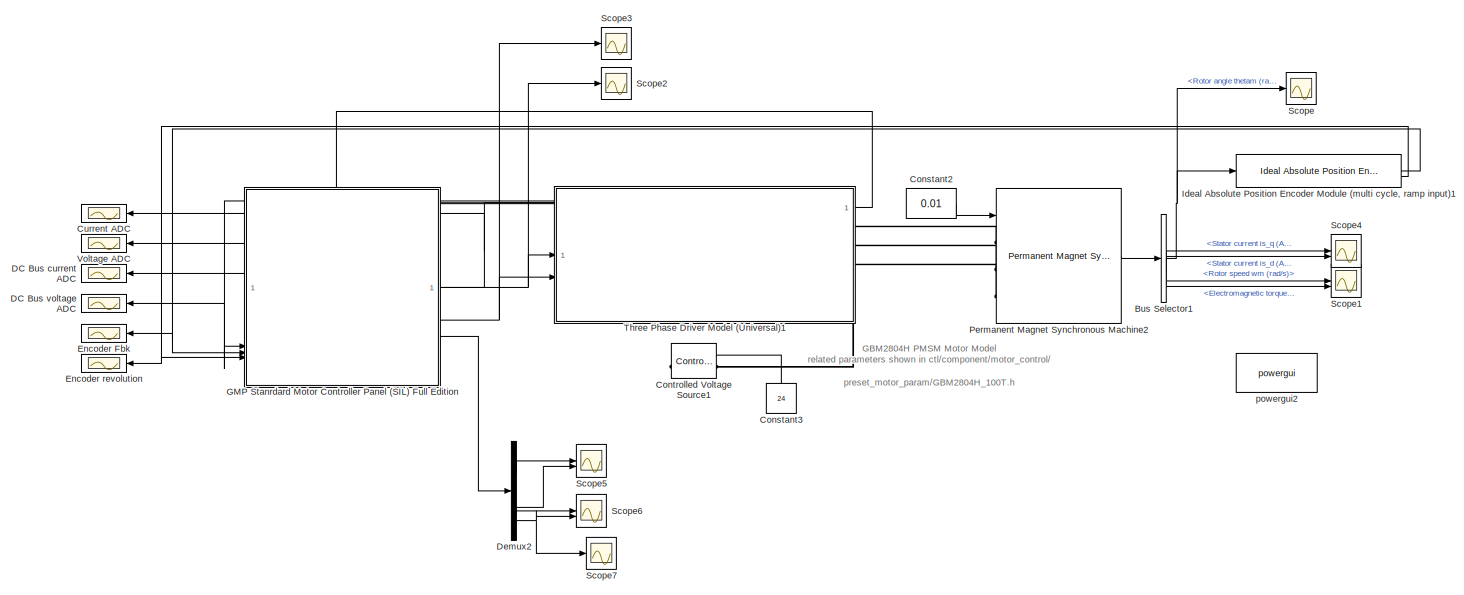
[diagram: root canvas - part 1/2, full width, top band]
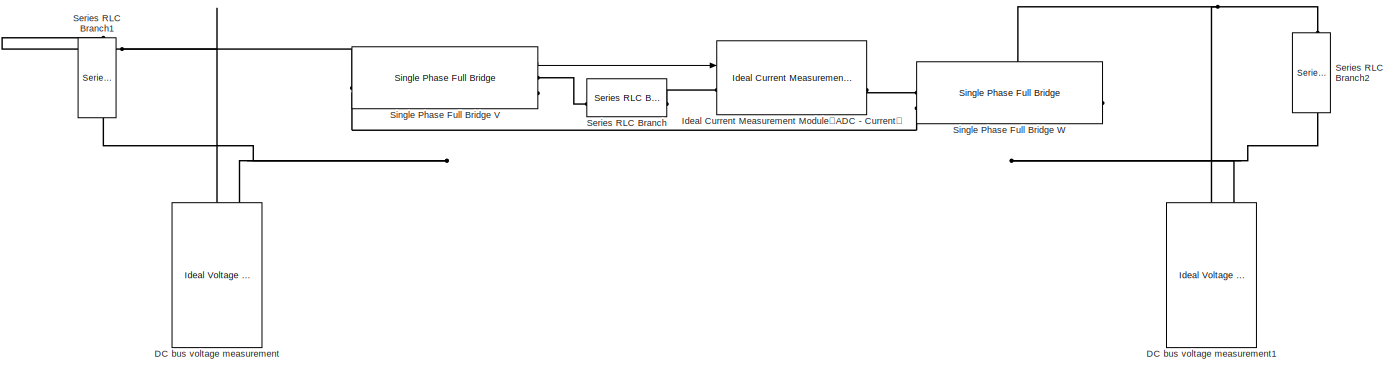
[diagram: root canvas - part 2/2, full width, bottom band]
MODEL slx_8301f8941a6f
KIND model
CONFIG AbsTol = auto
CONFIG EnableMultiTasking = off
CONFIG FixedStep = auto
CONFIG MaxStep = auto
CONFIG MinStep = auto
CONFIG RelTol = 1e-3
CONFIG SampleTimeConstraint = Unconstrained
CONFIG SolverName = VariableStepAuto
CONFIG StartTime = 0.0
CONFIG StopTime = 2
BLOCK [BusSelector] Bus Selector1
  OutputSignals = Rotor angle thetam (rad),Stator current is_q (A),Stator current is_d (A),Rotor speed wm (rad/s),Electromagnetic torque Te (N*m)
BLOCK [Constant] Constant2
  Value = 0.01
BLOCK [Constant] Constant3
  NameLocation = right
  Value = 24
BLOCK [Reference] Controlled Voltage Source1  REF=spsControlledVoltageSourceLib/Controlled Voltage Source
  LibrarySourceBlock = sps_lib/Sources/Controlled Voltage Source
  NameLocation = right
  SourceBlock = spsControlledVoltageSourceLib/Controlled Voltage Source
  SourceType = Controlled Voltage Source
BLOCK [Scope] Current ADC
  Floating = off
  NumInputPorts = 1
  ScopeSpecificationString = Simulink.scopes.TimeScopeBlockCfg('CurrentConfiguration', extmgr.ConfigurationSet(extmgr.Configuration('Core','General UI',true),extmgr.Configuration('Core','Source UI',true),extmgr.Configuration('Sources','WiredSimulink',true,'DataLoggingVariableName','ScopeData4'),extmgr.Configuration('Visuals','Time Domain',true,'SerializedDisplays',{struct('MinYLimReal','1963.00000','MaxYLimReal','2133.00000',...<+1699ch>
BLOCK [Scope] DC Bus current ADC
  Floating = off
  NumInputPorts = 1
  ScopeSpecificationString = Simulink.scopes.TimeScopeBlockCfg('CurrentConfiguration', extmgr.ConfigurationSet(extmgr.Configuration('Core','General UI',true),extmgr.Configuration('Core','Source UI',true),extmgr.Configuration('Sources','WiredSimulink',true,'DataLoggingVariableName','ScopeData6'),extmgr.Configuration('Visuals','Time Domain',true),extmgr.Configuration('Tools','Plot Navigation',true),extmgr.Configuration('Tools',...<+40ch>
BLOCK [Scope] DC Bus voltage ADC
  Floating = off
  NumInputPorts = 1
  ScopeSpecificationString = Simulink.scopes.TimeScopeBlockCfg('CurrentConfiguration', extmgr.ConfigurationSet(extmgr.Configuration('Core','General UI',true),extmgr.Configuration('Core','Source UI',true),extmgr.Configuration('Sources','WiredSimulink',true,'DataLoggingVariableName','ScopeData7'),extmgr.Configuration('Visuals','Time Domain',true),extmgr.Configuration('Tools','Plot Navigation',true),extmgr.Configuration('Tools',...<+40ch>
BLOCK [Reference] DC bus voltage measurement  REF=peripheral_utilities/Ideal Voltage Measurement Module(ADC - Voltage)
  Commented = on
  NameLocation = left
  SourceBlock = peripheral_utilities/Ideal Voltage Measurement Module(ADC - Voltage)
  SourceProductName = Virtual Peripheral Utilities
BLOCK [Reference] DC bus voltage measurement1  REF=peripheral_utilities/Ideal Voltage Measurement Module(ADC - Voltage)
  Commented = on
  NameLocation = left
  SourceBlock = peripheral_utilities/Ideal Voltage Measurement Module(ADC - Voltage)
  SourceProductName = Virtual Peripheral Utilities
BLOCK [Demux] Demux2
BLOCK [Scope] Encoder Fbk
  Floating = off
  NumInputPorts = 1
  ScopeSpecificationString = Simulink.scopes.TimeScopeBlockCfg('CurrentConfiguration', extmgr.ConfigurationSet(extmgr.Configuration('Core','General UI',true),extmgr.Configuration('Core','Source UI',true),extmgr.Configuration('Sources','WiredSimulink',true,'DataLoggingVariableName','ScopeData8'),extmgr.Configuration('Visuals','Time Domain',true,'SerializedDisplays',{struct('MinYLimReal','-2047.875','MaxYLimReal','18430.875','Y...<+1600ch>
BLOCK [Scope] Encoder revolution
  Floating = off
  NumInputPorts = 1
  ScopeSpecificationString = Simulink.scopes.TimeScopeBlockCfg('CurrentConfiguration', extmgr.ConfigurationSet(extmgr.Configuration('Core','General UI',true),extmgr.Configuration('Core','Source UI',true),extmgr.Configuration('Sources','WiredSimulink',true,'DataLoggingVariableName','ScopeData9'),extmgr.Configuration('Visuals','Time Domain',true,'SerializedDisplays',{struct('MinYLimReal','-10','MaxYLimReal','10','YLabelReal',''...<+849ch>
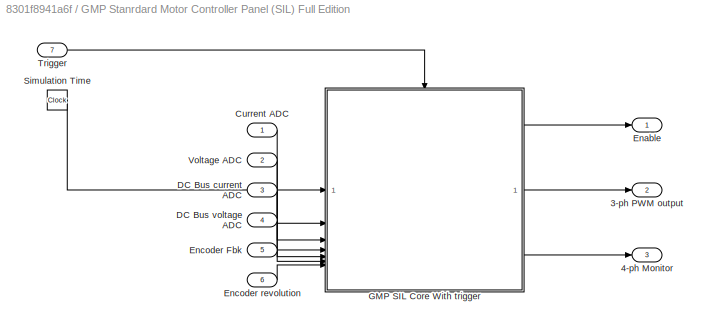
BLOCK [SubSystem] GMP Stanrdard Motor Controller Panel (SIL) Full Edition
  PortSchema = {"entries":[{"content":{"sides":[{"content":{"connectorIds":["In1","In2","In3","In4","In5","In6"]},"type":"ConnectorPlacement.EquallySpacedRectSide","uuid":"45c67bc9-9540-469a-a4ac-1e12eb9acca3"},{"content":{"connectorIds":["Out1","Out2","Out3"],"side":"RIGHT"},"type":"ConnectorPlacement.EquallySpacedRectSide","uuid":"a17116b4-0460-48ab-8ada-a785da6c5e29"},{"content":{"connectorIds":["In7"],"side"...<+289ch>
BLOCK [Outport] GMP Stanrdard Motor Controller Panel (SIL) Full Edition/3-ph PWM output
  Port = 2
BLOCK [Outport] GMP Stanrdard Motor Controller Panel (SIL) Full Edition/4-ph Monitor
  Port = 3
BLOCK [Inport] GMP Stanrdard Motor Controller Panel (SIL) Full Edition/Current ADC
BLOCK [Inport] GMP Stanrdard Motor Controller Panel (SIL) Full Edition/DC Bus current ADC
  Port = 3
BLOCK [Inport] GMP Stanrdard Motor Controller Panel (SIL) Full Edition/DC Bus voltage ADC
  Port = 4
BLOCK [Outport] GMP Stanrdard Motor Controller Panel (SIL) Full Edition/Enable
BLOCK [Inport] GMP Stanrdard Motor Controller Panel (SIL) Full Edition/Encoder Fbk
  Port = 5
BLOCK [Inport] GMP Stanrdard Motor Controller Panel (SIL) Full Edition/Encoder revolution
  Port = 6
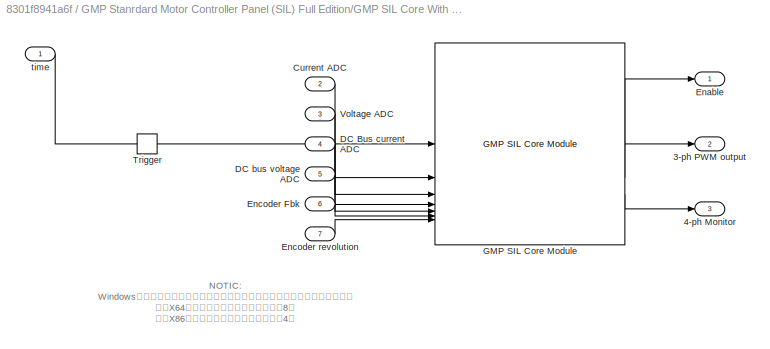
BLOCK [SubSystem] GMP Stanrdard Motor Controller Panel (SIL) Full Edition/GMP SIL Core With trigger
BLOCK [Outport] GMP Stanrdard Motor Controller Panel (SIL) Full Edition/GMP SIL Core With trigger/3-ph PWM output
  Port = 2
BLOCK [Outport] GMP Stanrdard Motor Controller Panel (SIL) Full Edition/GMP SIL Core With trigger/4-ph Monitor
  Port = 3
BLOCK [Inport] GMP Stanrdard Motor Controller Panel (SIL) Full Edition/GMP SIL Core With trigger/Current ADC
  Port = 2
BLOCK [Inport] GMP Stanrdard Motor Controller Panel (SIL) Full Edition/GMP SIL Core With trigger/DC Bus current ADC
  Port = 4
BLOCK [Inport] GMP Stanrdard Motor Controller Panel (SIL) Full Edition/GMP SIL Core With trigger/DC bus voltage ADC
  Port = 5
BLOCK [Outport] GMP Stanrdard Motor Controller Panel (SIL) Full Edition/GMP SIL Core With trigger/Enable
BLOCK [Inport] GMP Stanrdard Motor Controller Panel (SIL) Full Edition/GMP SIL Core With trigger/Encoder Fbk
  Port = 6
BLOCK [Inport] GMP Stanrdard Motor Controller Panel (SIL) Full Edition/GMP SIL Core With trigger/Encoder revolution
  Port = 7
BLOCK [Reference] GMP Stanrdard Motor Controller Panel (SIL) Full Edition/GMP SIL Core With trigger/GMP SIL Core Module  REF=gmp_sil_core_pack/GMP SIL Core Module
  SourceBlock = gmp_sil_core_pack/GMP SIL Core Module
  SourceProductName = GMP SIL Core Utilities
  SourceType = GMP CTL SIL Core
BLOCK [TriggerPort] GMP Stanrdard Motor Controller Panel (SIL) Full Edition/GMP SIL Core With trigger/Trigger
  PortDimensions = 1
  StatesWhenEnabling = held
  VariantControl = (inherit)
BLOCK [Inport] GMP Stanrdard Motor Controller Panel (SIL) Full Edition/GMP SIL Core With trigger/Voltage ADC
  Port = 3
BLOCK [Inport] GMP Stanrdard Motor Controller Panel (SIL) Full Edition/GMP SIL Core With trigger/time
BLOCK [Clock] GMP Stanrdard Motor Controller Panel (SIL) Full Edition/Simulation Time
BLOCK [Inport] GMP Stanrdard Motor Controller Panel (SIL) Full Edition/Trigger
  Port = 7
BLOCK [Inport] GMP Stanrdard Motor Controller Panel (SIL) Full Edition/Voltage ADC
  Port = 2
BLOCK [Reference] Ideal Absolute Position Encoder Module (multi cycle, ramp input)1  REF=peripheral_utilities/Ideal Absolute Position Encoder Module (multi cycle, ramp input)
  SourceBlock = peripheral_utilities/Ideal Absolute Position Encoder Module (multi cycle, ramp input)
  SourceProductName = Virtual Peripheral Utilities
BLOCK [Reference] Ideal Current Measurement Module（ADC - Current）  REF=peripheral_utilities/Ideal Current Measurement Module（ADC - Current）
  Commented = on
  SourceBlock = peripheral_utilities/Ideal Current Measurement Module（ADC - Current）
  SourceProductName = Virtual Peripheral Utilities
BLOCK [Reference] Permanent Magnet Synchronous Machine2  REF=spsPermanentMagnetSynchronousMachineLib/Permanent Magnet
Synchronous Machine
  LibrarySourceBlock = sps_lib/Electrical Machines/Permanent Magnet\nSynchronous Machine
  SourceBlock = spsPermanentMagnetSynchronousMachineLib/Permanent Magnet\nSynchronous Machine
  SourceType = Permanent Magnet Synchronous Machine
BLOCK [Scope] Scope
  Floating = off
  NumInputPorts = 1
  ScopeSpecificationString = Simulink.scopes.TimeScopeBlockCfg('CurrentConfiguration', extmgr.ConfigurationSet(extmgr.Configuration('Core','General UI',true),extmgr.Configuration('Core','Source UI',true),extmgr.Configuration('Sources','WiredSimulink',true,'DataLoggingVariableName','ScopeData1'),extmgr.Configuration('Visuals','Time Domain',true,'SerializedDisplays',{struct('MinYLimReal','-8.4093','MaxYLimReal','75.68219','YLab...<+1476ch>
BLOCK [Scope] Scope1
  Floating = off
  NumInputPorts = 2
  ScopeSpecificationString = Simulink.scopes.TimeScopeBlockCfg('CurrentConfiguration', extmgr.ConfigurationSet(extmgr.Configuration('Core','General UI',true),extmgr.Configuration('Core','Source UI',true),extmgr.Configuration('Sources','WiredSimulink',true,'DataLoggingVariableName','ScopeData2'),extmgr.Configuration('Visuals','Time Domain',true,'SerializedDisplays',{struct('MinYLimReal','-209.94214','MaxYLimReal','329.88362','...<+1568ch>
BLOCK [Scope] Scope2
  Floating = off
  NumInputPorts = 1
  ScopeSpecificationString = Simulink.scopes.TimeScopeBlockCfg('CurrentConfiguration', extmgr.ConfigurationSet(extmgr.Configuration('Core','General UI',true),extmgr.Configuration('Core','Source UI',true),extmgr.Configuration('Sources','WiredSimulink',true,'DataLoggingVariableName','ScopeData3'),extmgr.Configuration('Visuals','Time Domain',true,'SerializedDisplays',{struct('MinYLimReal','-0.125','MaxYLimReal','1.125','YLabelRe...<+1493ch>
BLOCK [Scope] Scope3
  Floating = off
  NumInputPorts = 1
  ScopeSpecificationString = Simulink.scopes.TimeScopeBlockCfg('CurrentConfiguration', extmgr.ConfigurationSet(extmgr.Configuration('Core','General UI',true),extmgr.Configuration('Core','Source UI',true),extmgr.Configuration('Sources','WiredSimulink',true,'DataLoggingVariableName','ScopeData4'),extmgr.Configuration('Visuals','Time Domain',true,'SerializedDisplays',{struct('MinYLimReal','-650.5','MaxYLimReal','5854.5','YLabelR...<+1726ch>
BLOCK [Scope] Scope4
  Floating = off
  NumInputPorts = 2
  ScopeSpecificationString = Simulink.scopes.TimeScopeBlockCfg('CurrentConfiguration', extmgr.ConfigurationSet(extmgr.Configuration('Core','General UI',true),extmgr.Configuration('Core','Source UI',true),extmgr.Configuration('Sources','WiredSimulink',true,'DataLoggingVariableName','ScopeData3'),extmgr.Configuration('Visuals','Time Domain',true,'SerializedDisplays',{struct('MinYLimReal','-0.21116','MaxYLimReal','0.72788','YLab...<+1601ch>
BLOCK [Scope] Scope5
  Floating = off
  NumInputPorts = 2
  ScopeSpecificationString = Simulink.scopes.TimeScopeBlockCfg('CurrentConfiguration', extmgr.ConfigurationSet(extmgr.Configuration('Core','General UI',true),extmgr.Configuration('Core','Source UI',true),extmgr.Configuration('Sources','WiredSimulink',true,'DataLoggingVariableName','ScopeData10'),extmgr.Configuration('Visuals','Time Domain',true,'SerializedDisplays',{struct('MinYLimReal','-0.75003','MaxYLimReal','0.75031','YLa...<+1681ch>
BLOCK [Scope] Scope6
  Floating = off
  NumInputPorts = 2
  ScopeSpecificationString = Simulink.scopes.TimeScopeBlockCfg('CurrentConfiguration', extmgr.ConfigurationSet(extmgr.Configuration('Core','General UI',true),extmgr.Configuration('Core','Source UI',true),extmgr.Configuration('Sources','WiredSimulink',true,'DataLoggingVariableName','ScopeData11'),extmgr.Configuration('Visuals','Time Domain',true,'SerializedDisplays',{struct('MinYLimReal','-1.61041','MaxYLimReal','4.31319','YLa...<+1683ch>
BLOCK [Scope] Scope7
  Floating = off
  NumInputPorts = 1
  ScopeSpecificationString = Simulink.scopes.TimeScopeBlockCfg('CurrentConfiguration', extmgr.ConfigurationSet(extmgr.Configuration('Core','General UI',true),extmgr.Configuration('Core','Source UI',true),extmgr.Configuration('Sources','WiredSimulink',true,'DataLoggingVariableName','ScopeData5'),extmgr.Configuration('Visuals','Time Domain',true,'SerializedDisplays',{struct('MinYLimReal','-1.61041','MaxYLimReal','4.31319','YLab...<+1554ch>
BLOCK [Reference] Series RLC Branch  REF=spsSeriesRLCBranchLib/Series RLC Branch
  Commented = on
  LibrarySourceBlock = sps_lib/Passives/Series RLC Branch
  SourceBlock = spsSeriesRLCBranchLib/Series RLC Branch
  SourceType = Series RLC Branch
BLOCK [Reference] Series RLC Branch1  REF=spsSeriesRLCBranchLib/Series RLC Branch
  Commented = on
  LibrarySourceBlock = sps_lib/Passives/Series RLC Branch
  NameLocation = left
  SourceBlock = spsSeriesRLCBranchLib/Series RLC Branch
  SourceType = Series RLC Branch
BLOCK [Reference] Series RLC Branch2  REF=spsSeriesRLCBranchLib/Series RLC Branch
  Commented = on
  LibrarySourceBlock = sps_lib/Passives/Series RLC Branch
  NameLocation = left
  SourceBlock = spsSeriesRLCBranchLib/Series RLC Branch
  SourceType = Series RLC Branch
BLOCK [Reference] Single Phase Full Bridge V  REF=peripheral_utilities/Single Phase Full Bridge
  Commented = on
  SourceBlock = peripheral_utilities/Single Phase Full Bridge
  SourceProductName = Virtual Peripheral Utilities
BLOCK [Reference] Single Phase Full Bridge W  REF=peripheral_utilities/Single Phase Full Bridge
  Commented = on
  SourceBlock = peripheral_utilities/Single Phase Full Bridge
  SourceProductName = Virtual Peripheral Utilities
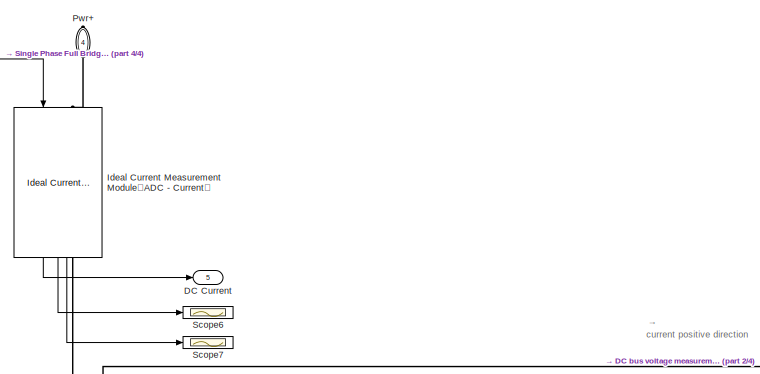
[diagram: Three Phase Driver Model (Universal)1 - part 1/4, top center region]
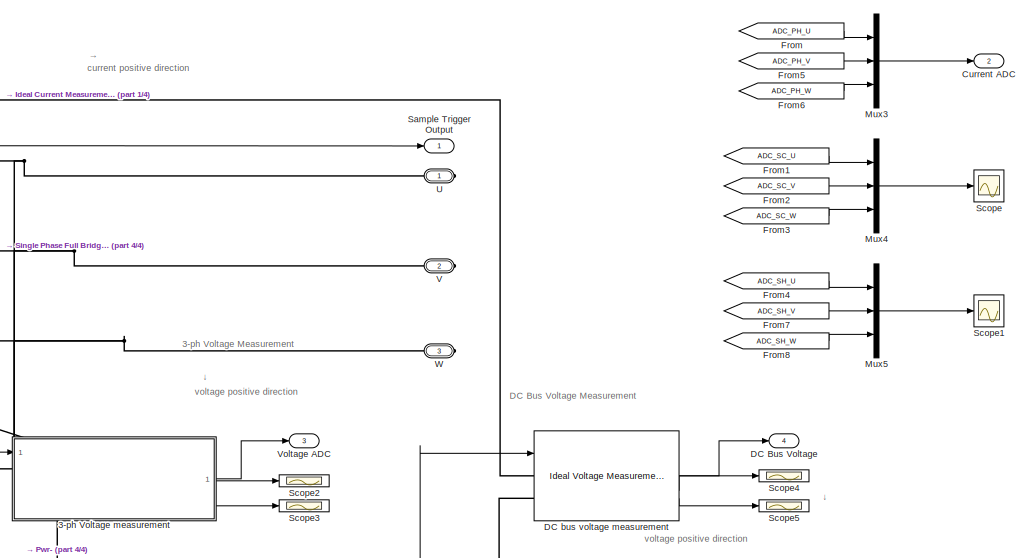
[diagram: Three Phase Driver Model (Universal)1 - part 2/4, middle right region]
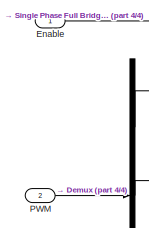
[diagram: Three Phase Driver Model (Universal)1 - part 3/4, middle left region]
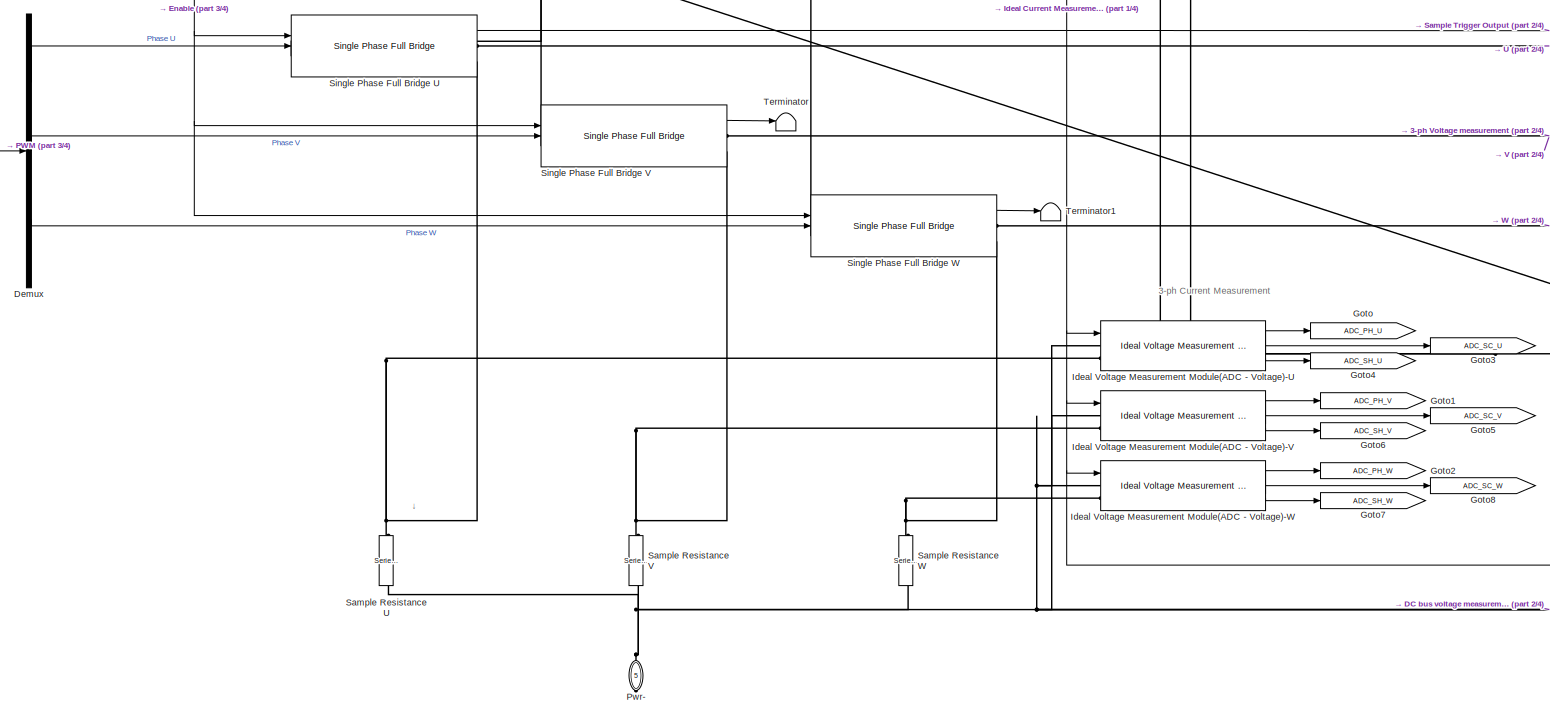
[diagram: Three Phase Driver Model (Universal)1 - part 4/4, bottom left region]
BLOCK [SubSystem] Three Phase Driver Model (Universal)1
  AncestorBlock = peripheral_utilities/Three Phase Driver Model (Universal)
  PortSchema = {"entries":[{"content":{"sides":[{"content":{"connectorIds":["In1","In2"]},"type":"ConnectorPlacement.EquallySpacedRectSide","uuid":"3f4c86ad-0582-4f47-8583-a8af9a7f9adc"},{"content":{"connectorIds":["Out1","RConn1","RConn2","RConn3"],"side":"RIGHT"},"type":"ConnectorPlacement.EquallySpacedRectSide","uuid":"ae91f325-3014-4188-9063-296f4d5623fa"},{"content":{"connectorIds":["Out2","Out3","Out4","Ou...<+461ch>
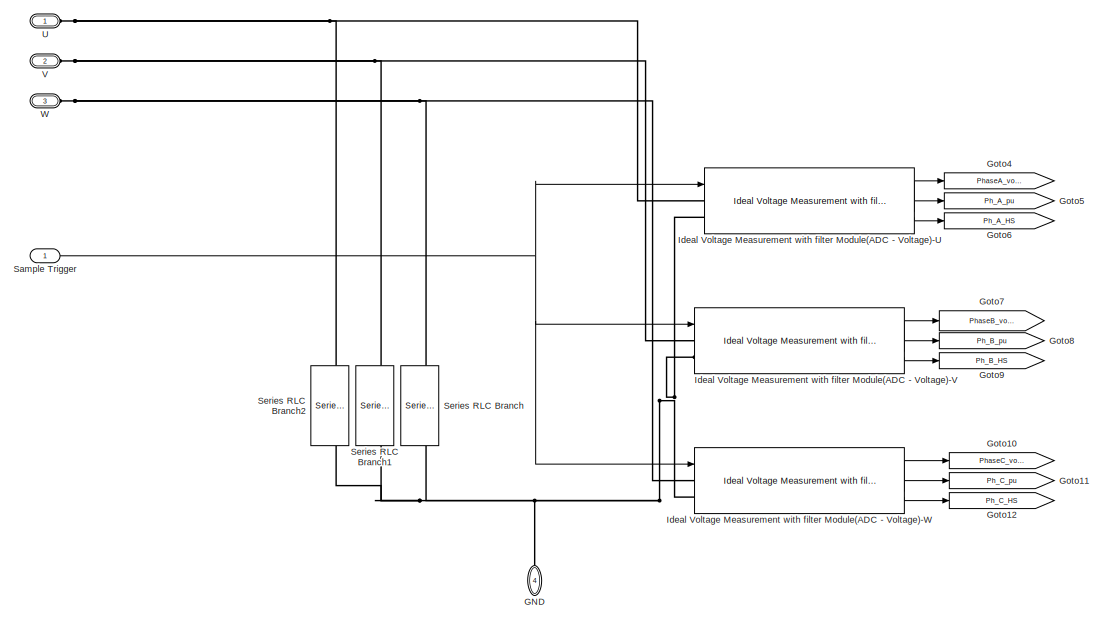
[diagram: Three Phase Driver Model (Universal)1/3-ph Voltage measurement - part 1/2, center side, full height]
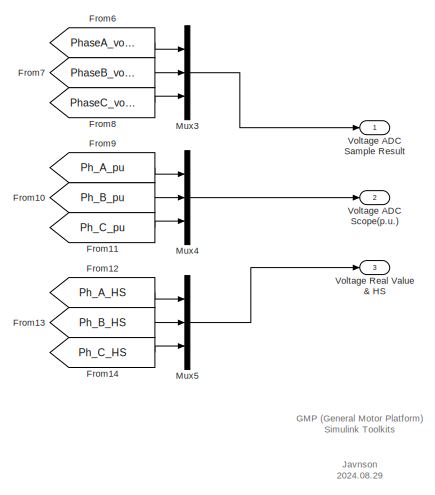
[diagram: Three Phase Driver Model (Universal)1/3-ph Voltage measurement - part 2/2, middle right region]
BLOCK [SubSystem] Three Phase Driver Model (Universal)1/3-ph Voltage measurement
  AncestorBlock = peripheral_utilities/Three Phases Voltage (ph-gnd) Measurement with Filter
  PortSchema = {"entries":[{"content":{"sides":[{"content":{"connectorIds":["In1"]},"type":"ConnectorPlacement.EquallySpacedRectSide","uuid":"ae4f4612-c092-4fa0-8a43-5c9e823110e3"},{"content":{"connectorIds":["Out1","Out2","Out3"],"side":"RIGHT"},"type":"ConnectorPlacement.EquallySpacedRectSide","uuid":"6db15ef0-d33a-4775-b4e6-14a566796673"},{"content":{"connectorIds":["LConn1","LConn2","LConn3","LConn4"],"side"...<+289ch>
BLOCK [From] Three Phase Driver Model (Universal)1/3-ph Voltage measurement/From10
  GotoTag = Ph_B_pu
BLOCK [From] Three Phase Driver Model (Universal)1/3-ph Voltage measurement/From11
  GotoTag = Ph_C_pu
BLOCK [From] Three Phase Driver Model (Universal)1/3-ph Voltage measurement/From12
  GotoTag = Ph_A_HS
BLOCK [From] Three Phase Driver Model (Universal)1/3-ph Voltage measurement/From13
  GotoTag = Ph_B_HS
BLOCK [From] Three Phase Driver Model (Universal)1/3-ph Voltage measurement/From14
  GotoTag = Ph_C_HS
BLOCK [From] Three Phase Driver Model (Universal)1/3-ph Voltage measurement/From6
  GotoTag = PhaseA_voltage
BLOCK [From] Three Phase Driver Model (Universal)1/3-ph Voltage measurement/From7
  GotoTag = PhaseB_voltage
BLOCK [From] Three Phase Driver Model (Universal)1/3-ph Voltage measurement/From8
  GotoTag = PhaseC_voltage
BLOCK [From] Three Phase Driver Model (Universal)1/3-ph Voltage measurement/From9
  GotoTag = Ph_A_pu
BLOCK [PMIOPort] Three Phase Driver Model (Universal)1/3-ph Voltage measurement/GND
  NameLocation = right
  Port = 4
  Side = Left
BLOCK [Goto] Three Phase Driver Model (Universal)1/3-ph Voltage measurement/Goto10
  GotoTag = PhaseC_voltage
BLOCK [Goto] Three Phase Driver Model (Universal)1/3-ph Voltage measurement/Goto11
  GotoTag = Ph_C_pu
BLOCK [Goto] Three Phase Driver Model (Universal)1/3-ph Voltage measurement/Goto12
  GotoTag = Ph_C_HS
BLOCK [Goto] Three Phase Driver Model (Universal)1/3-ph Voltage measurement/Goto4
  GotoTag = PhaseA_voltage
BLOCK [Goto] Three Phase Driver Model (Universal)1/3-ph Voltage measurement/Goto5
  GotoTag = Ph_A_pu
BLOCK [Goto] Three Phase Driver Model (Universal)1/3-ph Voltage measurement/Goto6
  GotoTag = Ph_A_HS
BLOCK [Goto] Three Phase Driver Model (Universal)1/3-ph Voltage measurement/Goto7
  GotoTag = PhaseB_voltage
BLOCK [Goto] Three Phase Driver Model (Universal)1/3-ph Voltage measurement/Goto8
  GotoTag = Ph_B_pu
BLOCK [Goto] Three Phase Driver Model (Universal)1/3-ph Voltage measurement/Goto9
  GotoTag = Ph_B_HS
BLOCK [Reference] Three Phase Driver Model (Universal)1/3-ph Voltage measurement/Ideal Voltage Measurement with filter Module(ADC - Voltage)-U  REF=peripheral_utilities/Ideal Voltage Measurement with filter Module(ADC - Voltage)
  SourceBlock = peripheral_utilities/Ideal Voltage Measurement with filter Module(ADC - Voltage)
  SourceProductName = Virtual Peripheral Utilities
BLOCK [Reference] Three Phase Driver Model (Universal)1/3-ph Voltage measurement/Ideal Voltage Measurement with filter Module(ADC - Voltage)-V  REF=peripheral_utilities/Ideal Voltage Measurement with filter Module(ADC - Voltage)
  SourceBlock = peripheral_utilities/Ideal Voltage Measurement with filter Module(ADC - Voltage)
  SourceProductName = Virtual Peripheral Utilities
BLOCK [Reference] Three Phase Driver Model (Universal)1/3-ph Voltage measurement/Ideal Voltage Measurement with filter Module(ADC - Voltage)-W  REF=peripheral_utilities/Ideal Voltage Measurement with filter Module(ADC - Voltage)
  SourceBlock = peripheral_utilities/Ideal Voltage Measurement with filter Module(ADC - Voltage)
  SourceProductName = Virtual Peripheral Utilities
BLOCK [Mux] Three Phase Driver Model (Universal)1/3-ph Voltage measurement/Mux3
  DisplayOption = bar
  Inputs = 3
BLOCK [Mux] Three Phase Driver Model (Universal)1/3-ph Voltage measurement/Mux4
  DisplayOption = bar
  Inputs = 3
BLOCK [Mux] Three Phase Driver Model (Universal)1/3-ph Voltage measurement/Mux5
  DisplayOption = bar
  Inputs = 3
BLOCK [Inport] Three Phase Driver Model (Universal)1/3-ph Voltage measurement/Sample Trigger
BLOCK [Reference] Three Phase Driver Model (Universal)1/3-ph Voltage measurement/Series RLC Branch  REF=spsSeriesRLCBranchLib/Series RLC Branch
  NameLocation = left
  SourceBlock = spsSeriesRLCBranchLib/Series RLC Branch
  SourceType = Series RLC Branch
BLOCK [Reference] Three Phase Driver Model (Universal)1/3-ph Voltage measurement/Series RLC Branch1  REF=spsSeriesRLCBranchLib/Series RLC Branch
  NameLocation = left
  SourceBlock = spsSeriesRLCBranchLib/Series RLC Branch
  SourceType = Series RLC Branch
BLOCK [Reference] Three Phase Driver Model (Universal)1/3-ph Voltage measurement/Series RLC Branch2  REF=spsSeriesRLCBranchLib/Series RLC Branch
  NameLocation = left
  SourceBlock = spsSeriesRLCBranchLib/Series RLC Branch
  SourceType = Series RLC Branch
BLOCK [PMIOPort] Three Phase Driver Model (Universal)1/3-ph Voltage measurement/U
  Side = Left
BLOCK [PMIOPort] Three Phase Driver Model (Universal)1/3-ph Voltage measurement/V
  Port = 2
  Side = Left
BLOCK [Outport] Three Phase Driver Model (Universal)1/3-ph Voltage measurement/Voltage ADC Sample Result
BLOCK [Outport] Three Phase Driver Model (Universal)1/3-ph Voltage measurement/Voltage ADC Scope(p.u.)
  Port = 2
BLOCK [Outport] Three Phase Driver Model (Universal)1/3-ph Voltage measurement/Voltage Real Value & HS
  Port = 3
BLOCK [PMIOPort] Three Phase Driver Model (Universal)1/3-ph Voltage measurement/W
  Port = 3
  Side = Left
BLOCK [Outport] Three Phase Driver Model (Universal)1/Current ADC
  Port = 2
BLOCK [Outport] Three Phase Driver Model (Universal)1/DC Bus Voltage
  Port = 4
BLOCK [Outport] Three Phase Driver Model (Universal)1/DC Current
  Port = 5
BLOCK [Reference] Three Phase Driver Model (Universal)1/DC bus voltage measurement  REF=peripheral_utilities/Ideal Voltage Measurement Module(ADC - Voltage)
  SourceBlock = peripheral_utilities/Ideal Voltage Measurement Module(ADC - Voltage)
  SourceProductName = Virtual Peripheral Utilities
BLOCK [Demux] Three Phase Driver Model (Universal)1/Demux
  Outputs = 3
BLOCK [Inport] Three Phase Driver Model (Universal)1/Enable
BLOCK [From] Three Phase Driver Model (Universal)1/From
  GotoTag = ADC_PH_U
BLOCK [From] Three Phase Driver Model (Universal)1/From1
  GotoTag = ADC_SC_U
BLOCK [From] Three Phase Driver Model (Universal)1/From2
  GotoTag = ADC_SC_V
BLOCK [From] Three Phase Driver Model (Universal)1/From3
  GotoTag = ADC_SC_W
BLOCK [From] Three Phase Driver Model (Universal)1/From4
  GotoTag = ADC_SH_U
BLOCK [From] Three Phase Driver Model (Universal)1/From5
  GotoTag = ADC_PH_V
BLOCK [From] Three Phase Driver Model (Universal)1/From6
  GotoTag = ADC_PH_W
BLOCK [From] Three Phase Driver Model (Universal)1/From7
  GotoTag = ADC_SH_V
BLOCK [From] Three Phase Driver Model (Universal)1/From8
  GotoTag = ADC_SH_W
BLOCK [Goto] Three Phase Driver Model (Universal)1/Goto
  GotoTag = ADC_PH_U
BLOCK [Goto] Three Phase Driver Model (Universal)1/Goto1
  GotoTag = ADC_PH_V
BLOCK [Goto] Three Phase Driver Model (Universal)1/Goto2
  GotoTag = ADC_PH_W
BLOCK [Goto] Three Phase Driver Model (Universal)1/Goto3
  GotoTag = ADC_SC_U
BLOCK [Goto] Three Phase Driver Model (Universal)1/Goto4
  GotoTag = ADC_SH_U
BLOCK [Goto] Three Phase Driver Model (Universal)1/Goto5
  GotoTag = ADC_SC_V
BLOCK [Goto] Three Phase Driver Model (Universal)1/Goto6
  GotoTag = ADC_SH_V
BLOCK [Goto] Three Phase Driver Model (Universal)1/Goto7
  GotoTag = ADC_SH_W
BLOCK [Goto] Three Phase Driver Model (Universal)1/Goto8
  GotoTag = ADC_SC_W
BLOCK [Reference] Three Phase Driver Model (Universal)1/Ideal Current Measurement Module（ADC - Current）  REF=peripheral_utilities/Ideal Current Measurement Module（ADC - Current）
  NameLocation = left
  SourceBlock = peripheral_utilities/Ideal Current Measurement Module（ADC - Current）
  SourceProductName = Virtual Peripheral Utilities
BLOCK [Reference] Three Phase Driver Model (Universal)1/Ideal Voltage Measurement Module(ADC - Voltage)-U  REF=peripheral_utilities/Ideal Voltage Measurement Module(ADC - Voltage)
  SourceBlock = peripheral_utilities/Ideal Voltage Measurement Module(ADC - Voltage)
  SourceProductName = Virtual Peripheral Utilities
BLOCK [Reference] Three Phase Driver Model (Universal)1/Ideal Voltage Measurement Module(ADC - Voltage)-V  REF=peripheral_utilities/Ideal Voltage Measurement Module(ADC - Voltage)
  SourceBlock = peripheral_utilities/Ideal Voltage Measurement Module(ADC - Voltage)
  SourceProductName = Virtual Peripheral Utilities
BLOCK [Reference] Three Phase Driver Model (Universal)1/Ideal Voltage Measurement Module(ADC - Voltage)-W  REF=peripheral_utilities/Ideal Voltage Measurement Module(ADC - Voltage)
  SourceBlock = peripheral_utilities/Ideal Voltage Measurement Module(ADC - Voltage)
  SourceProductName = Virtual Peripheral Utilities
BLOCK [Mux] Three Phase Driver Model (Universal)1/Mux3
  DisplayOption = bar
  Inputs = 3
BLOCK [Mux] Three Phase Driver Model (Universal)1/Mux4
  DisplayOption = bar
  Inputs = 3
BLOCK [Mux] Three Phase Driver Model (Universal)1/Mux5
  DisplayOption = bar
  Inputs = 3
BLOCK [Inport] Three Phase Driver Model (Universal)1/PWM
  Port = 2
BLOCK [PMIOPort] Three Phase Driver Model (Universal)1/Pwr+
  NameLocation = left
  Port = 4
  Side = Right
BLOCK [PMIOPort] Three Phase Driver Model (Universal)1/Pwr-
  NameLocation = right
  Port = 5
  Side = Right
BLOCK [Reference] Three Phase Driver Model (Universal)1/Sample Resistance U  REF=spsSeriesRLCBranchLib/Series RLC Branch
  NameLocation = left
  SourceBlock = spsSeriesRLCBranchLib/Series RLC Branch
  SourceType = Series RLC Branch
BLOCK [Reference] Three Phase Driver Model (Universal)1/Sample Resistance V  REF=spsSeriesRLCBranchLib/Series RLC Branch
  NameLocation = left
  SourceBlock = spsSeriesRLCBranchLib/Series RLC Branch
  SourceType = Series RLC Branch
BLOCK [Reference] Three Phase Driver Model (Universal)1/Sample Resistance W  REF=spsSeriesRLCBranchLib/Series RLC Branch
  NameLocation = left
  SourceBlock = spsSeriesRLCBranchLib/Series RLC Branch
  SourceType = Series RLC Branch
BLOCK [Outport] Three Phase Driver Model (Universal)1/Sample Trigger Output
BLOCK [Scope] Three Phase Driver Model (Universal)1/Scope
  Floating = off
  NumInputPorts = 1
  ScopeSpecificationString = Simulink.scopes.TimeScopeBlockCfg('CurrentConfiguration', extmgr.ConfigurationSet(extmgr.Configuration('Core','General UI',true),extmgr.Configuration('Core','Source UI',true),extmgr.Configuration('Sources','WiredSimulink',true),extmgr.Configuration('Visuals','Time Domain',true,'SerializedDisplays',{struct('MinYLimReal','0.44616','MaxYLimReal','0.5534','YLabelReal','','MinYLimMag','0.44616','MaxYLi...<+1635ch>
BLOCK [Scope] Three Phase Driver Model (Universal)1/Scope1
  Floating = off
  NumInputPorts = 1
  ScopeSpecificationString = Simulink.scopes.TimeScopeBlockCfg('CurrentConfiguration', extmgr.ConfigurationSet(extmgr.Configuration('Core','General UI',true),extmgr.Configuration('Core','Source UI',true),extmgr.Configuration('Sources','WiredSimulink',true,'DataLoggingVariableName','ScopeData1'),extmgr.Configuration('Visuals','Time Domain',true,'SerializedDisplays',{struct('MinYLimReal','-0.00785','MaxYLimReal','0.00755','YLab...<+1705ch>
BLOCK [Scope] Three Phase Driver Model (Universal)1/Scope2
  Floating = off
  NumInputPorts = 1
  ScopeSpecificationString = Simulink.scopes.TimeScopeBlockCfg('CurrentConfiguration', extmgr.ConfigurationSet(extmgr.Configuration('Core','General UI',true),extmgr.Configuration('Core','Source UI',true),extmgr.Configuration('Sources','WiredSimulink',true,'DataLoggingVariableName','ScopeData2'),extmgr.Configuration('Visuals','Time Domain',true,'SerializedDisplays',{struct('MinYLimReal','0.06157','MaxYLimReal','0.23652','YLabe...<+1582ch>
BLOCK [Scope] Three Phase Driver Model (Universal)1/Scope3
  Floating = off
  NumInputPorts = 1
  ScopeSpecificationString = Simulink.scopes.TimeScopeBlockCfg('CurrentConfiguration', extmgr.ConfigurationSet(extmgr.Configuration('Core','General UI',true),extmgr.Configuration('Core','Source UI',true),extmgr.Configuration('Sources','WiredSimulink',true,'DataLoggingVariableName','ScopeData3'),extmgr.Configuration('Visuals','Time Domain',true,'SerializedDisplays',{struct('MinYLimReal','-2.45812','MaxYLimReal','14.44693','YLa...<+1681ch>
BLOCK [Scope] Three Phase Driver Model (Universal)1/Scope4
  Floating = off
  NumInputPorts = 1
  ScopeSpecificationString = Simulink.scopes.TimeScopeBlockCfg('CurrentConfiguration', extmgr.ConfigurationSet(extmgr.Configuration('Core','General UI',true),extmgr.Configuration('Core','Source UI',true),extmgr.Configuration('Sources','WiredSimulink',true,'DataLoggingVariableName','ScopeData4'),extmgr.Configuration('Visuals','Time Domain',true),extmgr.Configuration('Tools','Plot Navigation',true),extmgr.Configuration('Tools',...<+40ch>
BLOCK [Scope] Three Phase Driver Model (Universal)1/Scope5
  Floating = off
  NumInputPorts = 1
  ScopeSpecificationString = Simulink.scopes.TimeScopeBlockCfg('CurrentConfiguration', extmgr.ConfigurationSet(extmgr.Configuration('Core','General UI',true),extmgr.Configuration('Core','Source UI',true),extmgr.Configuration('Sources','WiredSimulink',true,'DataLoggingVariableName','ScopeData5'),extmgr.Configuration('Visuals','Time Domain',true,'SerializedDisplays',{struct('MinYLimReal','-3.00000','MaxYLimReal','27.00000','YLa...<+1588ch>
BLOCK [Scope] Three Phase Driver Model (Universal)1/Scope6
  Floating = off
  NumInputPorts = 1
  ScopeSpecificationString = Simulink.scopes.TimeScopeBlockCfg('CurrentConfiguration', extmgr.ConfigurationSet(extmgr.Configuration('Core','General UI',true),extmgr.Configuration('Core','Source UI',true),extmgr.Configuration('Sources','WiredSimulink',true,'DataLoggingVariableName','ScopeData1'),extmgr.Configuration('Visuals','Time Domain',true),extmgr.Configuration('Tools','Plot Navigation',true),extmgr.Configuration('Tools',...<+40ch>
BLOCK [Scope] Three Phase Driver Model (Universal)1/Scope7
  Floating = off
  NumInputPorts = 1
  ScopeSpecificationString = Simulink.scopes.TimeScopeBlockCfg('CurrentConfiguration', extmgr.ConfigurationSet(extmgr.Configuration('Core','General UI',true),extmgr.Configuration('Core','Source UI',true),extmgr.Configuration('Sources','WiredSimulink',true,'DataLoggingVariableName','ScopeData2'),extmgr.Configuration('Visuals','Time Domain',true),extmgr.Configuration('Tools','Plot Navigation',true),extmgr.Configuration('Tools',...<+40ch>
BLOCK [Reference] Three Phase Driver Model (Universal)1/Single Phase Full Bridge U  REF=peripheral_utilities/Single Phase Full Bridge
  SourceBlock = peripheral_utilities/Single Phase Full Bridge
  SourceProductName = Virtual Peripheral Utilities
BLOCK [Reference] Three Phase Driver Model (Universal)1/Single Phase Full Bridge V  REF=peripheral_utilities/Single Phase Full Bridge
  SourceBlock = peripheral_utilities/Single Phase Full Bridge
  SourceProductName = Virtual Peripheral Utilities
BLOCK [Reference] Three Phase Driver Model (Universal)1/Single Phase Full Bridge W  REF=peripheral_utilities/Single Phase Full Bridge
  SourceBlock = peripheral_utilities/Single Phase Full Bridge
  SourceProductName = Virtual Peripheral Utilities
BLOCK [Terminator] Three Phase Driver Model (Universal)1/Terminator
BLOCK [Terminator] Three Phase Driver Model (Universal)1/Terminator1
BLOCK [PMIOPort] Three Phase Driver Model (Universal)1/U
  Side = Right
BLOCK [PMIOPort] Three Phase Driver Model (Universal)1/V
  Port = 2
  Side = Right
BLOCK [Outport] Three Phase Driver Model (Universal)1/Voltage ADC
  Port = 3
BLOCK [PMIOPort] Three Phase Driver Model (Universal)1/W
  Port = 3
  Side = Right
BLOCK [Scope] Voltage ADC
  Floating = off
  NumInputPorts = 1
  ScopeSpecificationString = Simulink.scopes.TimeScopeBlockCfg('CurrentConfiguration', extmgr.ConfigurationSet(extmgr.Configuration('Core','General UI',true),extmgr.Configuration('Core','Source UI',true),extmgr.Configuration('Sources','WiredSimulink',true,'DataLoggingVariableName','ScopeData5'),extmgr.Configuration('Visuals','Time Domain',true,'SerializedDisplays',{struct('MinYLimReal','-10','MaxYLimReal','10','YLabelReal',''...<+849ch>
BLOCK [Reference] powergui2  REF=spspowerguiLib/powergui
  LibrarySourceBlock = sps_lib/powergui
  Priority = 1
  SourceBlock = spspowerguiLib/powergui
  SourceType = PSB option menu block
ANNOTATION (root): GBM2804H PMSM Motor Model related parameters shown in ctl/component/motor_control/ preset_motor_param/GBM2804H_100T.h
ANNOTATION GMP Stanrdard Motor Controller Panel (SIL) Full Edition/GMP SIL Core With trigger: NOTIC: Windows平台下必须设置为正确的内存对齐方式，否则会导致收到的数据乱码！ 对于X64的编译方式，默认的内存对齐为8； 对于X86的编译方式，默认的内存对齐为4。
ANNOTATION Three Phase Driver Model (Universal)1: 3-ph Current Measurement
ANNOTATION Three Phase Driver Model (Universal)1: 3-ph Voltage Measurement
ANNOTATION Three Phase Driver Model (Universal)1: →
ANNOTATION Three Phase Driver Model (Universal)1: ↓
ANNOTATION Three Phase Driver Model (Universal)1: DC Bus Voltage Measurement
ANNOTATION Three Phase Driver Model (Universal)1: current positive direction
ANNOTATION Three Phase Driver Model (Universal)1: voltage positive direction
ANNOTATION Three Phase Driver Model (Universal)1/3-ph Voltage measurement: GMP (General Motor Platform) Simulink Toolkits
ANNOTATION Three Phase Driver Model (Universal)1/3-ph Voltage measurement: Javnson 2024.08.29
NET Bus Selector1:1 -> Ideal Absolute Position Encoder Module (multi cycle, ramp input)1:1, Scope:1
LINE Bus Selector1:2 -> Scope4:1
LINE Bus Selector1:3 -> Scope4:2
LINE Bus Selector1:4 -> Scope1:1
LINE Bus Selector1:5 -> Scope1:2
LINE Constant2:1 -> Permanent Magnet Synchronous Machine2:1
LINE Constant3:1 -> Controlled Voltage Source1:1
LINE Demux2:1 -> Scope5:1
LINE Demux2:2 -> Scope5:2
LINE Demux2:3 -> Scope6:1
NET Demux2:4 -> Scope6:2, Scope7:1
LINE GMP Stanrdard Motor Controller Panel (SIL) Full Edition/Current ADC:1 -> GMP Stanrdard Motor Controller Panel (SIL) Full Edition/GMP SIL Core With trigger:2
LINE GMP Stanrdard Motor Controller Panel (SIL) Full Edition/DC Bus current ADC:1 -> GMP Stanrdard Motor Controller Panel (SIL) Full Edition/GMP SIL Core With trigger:4
LINE GMP Stanrdard Motor Controller Panel (SIL) Full Edition/DC Bus voltage ADC:1 -> GMP Stanrdard Motor Controller Panel (SIL) Full Edition/GMP SIL Core With trigger:5
LINE GMP Stanrdard Motor Controller Panel (SIL) Full Edition/Encoder Fbk:1 -> GMP Stanrdard Motor Controller Panel (SIL) Full Edition/GMP SIL Core With trigger:6
LINE GMP Stanrdard Motor Controller Panel (SIL) Full Edition/Encoder revolution:1 -> GMP Stanrdard Motor Controller Panel (SIL) Full Edition/GMP SIL Core With trigger:7
LINE GMP Stanrdard Motor Controller Panel (SIL) Full Edition/GMP SIL Core With trigger/Current ADC:1 -> GMP Stanrdard Motor Controller Panel (SIL) Full Edition/GMP SIL Core With trigger/GMP SIL Core Module:2
LINE GMP Stanrdard Motor Controller Panel (SIL) Full Edition/GMP SIL Core With trigger/DC Bus current ADC:1 -> GMP Stanrdard Motor Controller Panel (SIL) Full Edition/GMP SIL Core With trigger/GMP SIL Core Module:4
LINE GMP Stanrdard Motor Controller Panel (SIL) Full Edition/GMP SIL Core With trigger/DC bus voltage ADC:1 -> GMP Stanrdard Motor Controller Panel (SIL) Full Edition/GMP SIL Core With trigger/GMP SIL Core Module:5
LINE GMP Stanrdard Motor Controller Panel (SIL) Full Edition/GMP SIL Core With trigger/Encoder Fbk:1 -> GMP Stanrdard Motor Controller Panel (SIL) Full Edition/GMP SIL Core With trigger/GMP SIL Core Module:6
LINE GMP Stanrdard Motor Controller Panel (SIL) Full Edition/GMP SIL Core With trigger/Encoder revolution:1 -> GMP Stanrdard Motor Controller Panel (SIL) Full Edition/GMP SIL Core With trigger/GMP SIL Core Module:7
LINE GMP Stanrdard Motor Controller Panel (SIL) Full Edition/GMP SIL Core With trigger/GMP SIL Core Module:1 -> GMP Stanrdard Motor Controller Panel (SIL) Full Edition/GMP SIL Core With trigger/Enable:1
LINE GMP Stanrdard Motor Controller Panel (SIL) Full Edition/GMP SIL Core With trigger/GMP SIL Core Module:2 -> GMP Stanrdard Motor Controller Panel (SIL) Full Edition/GMP SIL Core With trigger/3-ph PWM output:1
LINE GMP Stanrdard Motor Controller Panel (SIL) Full Edition/GMP SIL Core With trigger/GMP SIL Core Module:3 -> GMP Stanrdard Motor Controller Panel (SIL) Full Edition/GMP SIL Core With trigger/4-ph Monitor:1
LINE GMP Stanrdard Motor Controller Panel (SIL) Full Edition/GMP SIL Core With trigger/Voltage ADC:1 -> GMP Stanrdard Motor Controller Panel (SIL) Full Edition/GMP SIL Core With trigger/GMP SIL Core Module:3
LINE GMP Stanrdard Motor Controller Panel (SIL) Full Edition/GMP SIL Core With trigger/time:1 -> GMP Stanrdard Motor Controller Panel (SIL) Full Edition/GMP SIL Core With trigger/GMP SIL Core Module:1
LINE GMP Stanrdard Motor Controller Panel (SIL) Full Edition/GMP SIL Core With trigger:1 -> GMP Stanrdard Motor Controller Panel (SIL) Full Edition/Enable:1
LINE GMP Stanrdard Motor Controller Panel (SIL) Full Edition/GMP SIL Core With trigger:2 -> GMP Stanrdard Motor Controller Panel (SIL) Full Edition/3-ph PWM output:1
LINE GMP Stanrdard Motor Controller Panel (SIL) Full Edition/GMP SIL Core With trigger:3 -> GMP Stanrdard Motor Controller Panel (SIL) Full Edition/4-ph Monitor:1
LINE GMP Stanrdard Motor Controller Panel (SIL) Full Edition/Simulation Time:1 -> GMP Stanrdard Motor Controller Panel (SIL) Full Edition/GMP SIL Core With trigger:1
LINE GMP Stanrdard Motor Controller Panel (SIL) Full Edition/Trigger:1 -> GMP Stanrdard Motor Controller Panel (SIL) Full Edition/GMP SIL Core With trigger:trigger
LINE GMP Stanrdard Motor Controller Panel (SIL) Full Edition/Voltage ADC:1 -> GMP Stanrdard Motor Controller Panel (SIL) Full Edition/GMP SIL Core With trigger:3
NET GMP Stanrdard Motor Controller Panel (SIL) Full Edition:1 -> Scope2:1, Three Phase Driver Model (Universal)1:1
NET GMP Stanrdard Motor Controller Panel (SIL) Full Edition:2 -> Scope3:1, Three Phase Driver Model (Universal)1:2
LINE GMP Stanrdard Motor Controller Panel (SIL) Full Edition:3 -> Demux2:1
NET Ideal Absolute Position Encoder Module (multi cycle, ramp input)1:1 -> Encoder Fbk:1, GMP Stanrdard Motor Controller Panel (SIL) Full Edition:5
NET Ideal Absolute Position Encoder Module (multi cycle, ramp input)1:2 -> Encoder revolution:1, GMP Stanrdard Motor Controller Panel (SIL) Full Edition:6
LINE Permanent Magnet Synchronous Machine2:1 -> Bus Selector1:1
LINE Single Phase Full Bridge V:1 -> Ideal Current Measurement Module（ADC - Current）:1
LINE Three Phase Driver Model (Universal)1:1 -> GMP Stanrdard Motor Controller Panel (SIL) Full Edition:7
NET Three Phase Driver Model (Universal)1:2 -> Current ADC:1, GMP Stanrdard Motor Controller Panel (SIL) Full Edition:1
NET Three Phase Driver Model (Universal)1:3 -> GMP Stanrdard Motor Controller Panel (SIL) Full Edition:2, Voltage ADC:1
NET Three Phase Driver Model (Universal)1:4 -> DC Bus current ADC:1, GMP Stanrdard Motor Controller Panel (SIL) Full Edition:3
NET Three Phase Driver Model (Universal)1:5 -> DC Bus voltage ADC:1, GMP Stanrdard Motor Controller Panel (SIL) Full Edition:4
PLINE Controlled Voltage Source1:LConn1 -- Three Phase Driver Model (Universal)1:RConn5
PLINE Controlled Voltage Source1:RConn1 -- Three Phase Driver Model (Universal)1:RConn4
PNET net1: DC bus voltage measurement1:LConn1 -- Series RLC Branch2:LConn1 -- Single Phase Full Bridge W:LConn1
PNET net2: DC bus voltage measurement1:LConn2 -- DC bus voltage measurement:LConn2 -- Series RLC Branch1:RConn1 -- Series RLC Branch2:RConn1 -- Single Phase Full Bridge V:RConn2 -- Single Phase Full Bridge W:RConn2
PNET net3: DC bus voltage measurement:LConn1 -- Series RLC Branch1:LConn1 -- Single Phase Full Bridge V:LConn1
PLINE Ideal Current Measurement Module（ADC - Current）:LConn1 -- Series RLC Branch:RConn1
PLINE Ideal Current Measurement Module（ADC - Current）:RConn1 -- Single Phase Full Bridge W:RConn1
PLINE Permanent Magnet Synchronous Machine2:LConn1 -- Three Phase Driver Model (Universal)1:RConn1
PLINE Permanent Magnet Synchronous Machine2:LConn2 -- Three Phase Driver Model (Universal)1:RConn2
PLINE Permanent Magnet Synchronous Machine2:LConn3 -- Three Phase Driver Model (Universal)1:RConn3
PLINE Series RLC Branch:LConn1 -- Single Phase Full Bridge V:RConn1
note: NET lines group one-source signal fan-out (src -> all destinations, sorted); 1:1 wires keep LINE; PNET lines group multi-terminal physical nets as a canonical sorted terminal list (undirected conserving connections); 2-terminal nets keep the pairwise PLINE form
